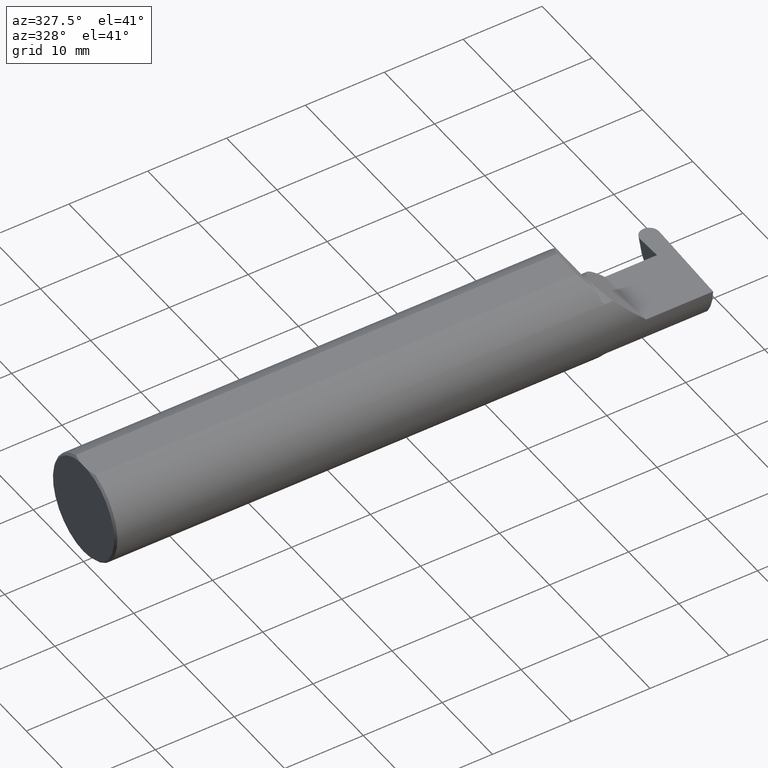
[diagram: clean part render]
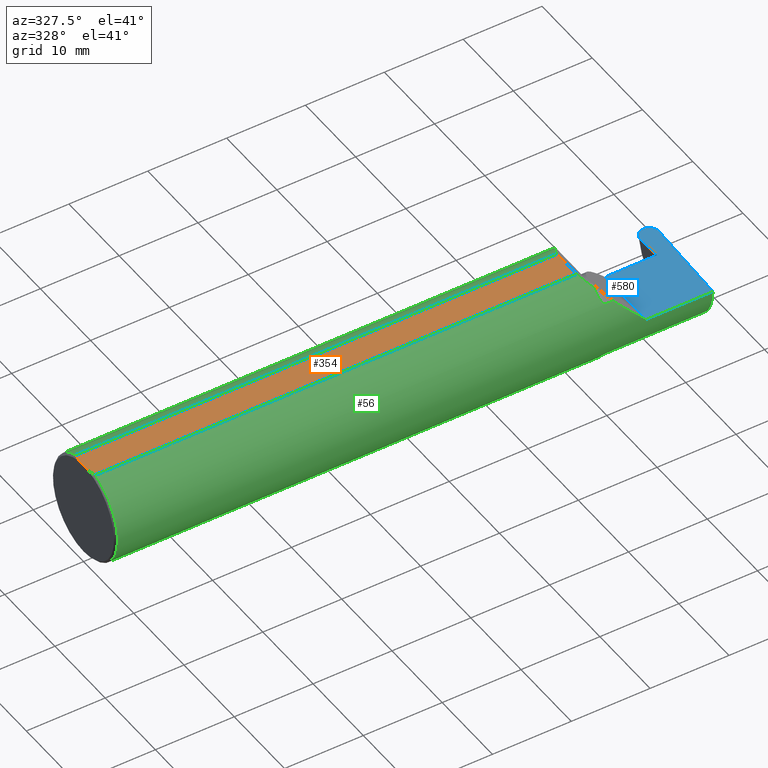
[diagram: same view with three faces highlighted in distinct colors, each labeled with its STEP entity id]
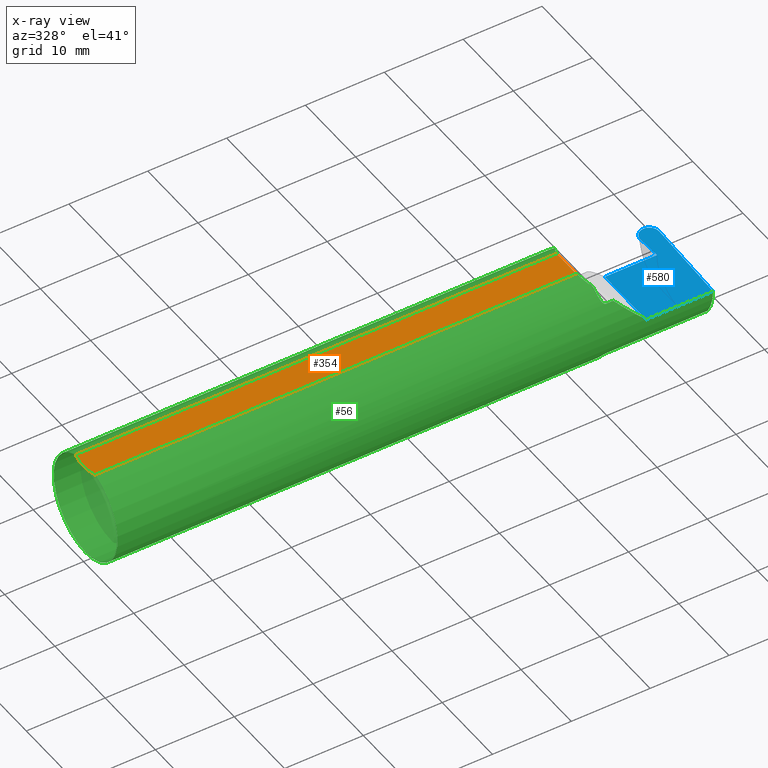
[diagram: x-ray of the same camera — body ghosted, the three highlighted faces saturated]
A machine part, auxiliary view with three faces highlighted in distinct colors.
The next image is the same camera in x-ray (body ghosted, the three faces saturated) — at least one of them is partly hidden behind the body in this view.
Their STEP definitions:

[orange] entity #354 — the highlighted planar face has unit normal (0, 0, 1).
#24 = CARTESIAN_POINT ( 'NONE',  ( 0.009999999999999927350, 0.07650098038587520299, 0.2378499999999998671 ) ) ;
#27 = EDGE_LOOP ( 'NONE', ( #173, #750, #589, #773, #661, #742 ) ) ;
#33 = EDGE_CURVE ( 'NONE', #127, #99, #490, .T. ) ;
#42 = CARTESIAN_POINT ( 'NONE',  ( 0.000000000000000000, -0.03090954545120560767, 0.2378499999999998671 ) ) ;
#57 = CARTESIAN_POINT ( 'NONE',  ( 2.412149999999998240, -0.07650098038587530014, 0.2378499999999998948 ) ) ;
#99 = VERTEX_POINT ( 'NONE', #772 ) ;
#127 = VERTEX_POINT ( 'NONE', #583 ) ;
#135 = VERTEX_POINT ( 'NONE', #57 ) ;
#143 = LINE ( 'NONE', #665, #466 ) ;
#154 = B_SPLINE_CURVE_WITH_KNOTS ( 'NONE', 3,
 ( #807, #605, #158, #24 ),
 .UNSPECIFIED., .F., .F.,
 ( 4, 4 ),
 ( 0.01593449416844765903, 0.01712021724825598876 ),
 .UNSPECIFIED. ) ;
#158 = CARTESIAN_POINT ( 'NONE',  ( 0.005466242398876407227, 0.06169385855649833772, 0.2378499999999998671 ) ) ;
#164 = CARTESIAN_POINT ( 'NONE',  ( 0.005459900170181729989, -0.06167314502012864741, 0.2378499999999998671 ) ) ;
#173 = ORIENTED_EDGE ( 'NONE', *, *, #644, .T. ) ;
#228 = VECTOR ( 'NONE', #581, 39.37007874015748143 ) ;
#288 = FACE_OUTER_BOUND ( 'NONE', #27, .T. ) ;
#294 = VERTEX_POINT ( 'NONE', #353 ) ;
#296 = EDGE_CURVE ( 'NONE', #99, #521, #154, .T. ) ;
#353 = CARTESIAN_POINT ( 'NONE',  ( 0.009999999999999927350, -0.07650098038587520299, 0.2378499999999998671 ) ) ;
#354 = ADVANCED_FACE ( 'NONE', ( #288 ), #492, .T. ) ;
#378 = DIRECTION ( 'NONE',  ( -0.000000000000000000, 1.000000000000000000, -0.000000000000000000 ) ) ;
#379 = EDGE_CURVE ( 'NONE', #533, #521, #489, .T. ) ;
#380 = EDGE_CURVE ( 'NONE', #294, #127, #457, .T. ) ;
#419 = CARTESIAN_POINT ( 'NONE',  ( 3.501298404146671484, 0.2498499999999998500, 0.2378499999999998671 ) ) ;
#427 = VECTOR ( 'NONE', #814, 39.37007874015748143 ) ;
#450 = CARTESIAN_POINT ( 'NONE',  ( 2.412149999999998240, -0.2500000000000000555, 0.2378499999999998948 ) ) ;
#457 = B_SPLINE_CURVE_WITH_KNOTS ( 'NONE', 3,
 ( #753, #164, #666, #42 ),
 .UNSPECIFIED., .F., .F.,
 ( 4, 4 ),
 ( 0.01317593029100226111, 0.01435802289191457325 ),
 .UNSPECIFIED. ) ;
#466 = VECTOR ( 'NONE', #546, 39.37007874015748143 ) ;
#489 = LINE ( 'NONE', #556, #427 ) ;
#490 = LINE ( 'NONE', #701, #506 ) ;
#492 = PLANE ( 'NONE',  #790 ) ;
#506 = VECTOR ( 'NONE', #378, 39.37007874015748143 ) ;
#521 = VERTEX_POINT ( 'NONE', #708 ) ;
#530 = LINE ( 'NONE', #450, #228 ) ;
#533 = VERTEX_POINT ( 'NONE', #841 ) ;
#546 = DIRECTION ( 'NONE',  ( 1.000000000000000000, 0.000000000000000000, 0.000000000000000000 ) ) ;
#550 = DIRECTION ( 'NONE',  ( 1.000000000000000000, 0.000000000000000000, -0.000000000000000000 ) ) ;
#553 = EDGE_CURVE ( 'NONE', #135, #533, #530, .T. ) ;
#556 = CARTESIAN_POINT ( 'NONE',  ( 0.000000000000000000, 0.07650098038587520299, 0.2378499999999998671 ) ) ;
#581 = DIRECTION ( 'NONE',  ( 0.000000000000000000, 1.000000000000000000, 0.000000000000000000 ) ) ;
#583 = CARTESIAN_POINT ( 'NONE',  ( 0.000000000000000000, -0.03090954545120560767, 0.2378499999999998671 ) ) ;
#589 = ORIENTED_EDGE ( 'NONE', *, *, #379, .T. ) ;
#605 = CARTESIAN_POINT ( 'NONE',  ( 0.002005502345409073024, 0.04647171987093980799, 0.2378499999999998671 ) ) ;
#621 = DIRECTION ( 'NONE',  ( 0.000000000000000000, 0.000000000000000000, 1.000000000000000000 ) ) ;
#644 = EDGE_CURVE ( 'NONE', #294, #135, #143, .T. ) ;
#661 = ORIENTED_EDGE ( 'NONE', *, *, #33, .F. ) ;
#665 = CARTESIAN_POINT ( 'NONE',  ( 0.000000000000000000, -0.07650098038587520299, 0.2378499999999998671 ) ) ;
#666 = CARTESIAN_POINT ( 'NONE',  ( 0.001983148254845710189, -0.04629825796642594860, 0.2378499999999998671 ) ) ;
#701 = CARTESIAN_POINT ( 'NONE',  ( 0.000000000000000000, 0.2498499999999998500, 0.2378499999999998671 ) ) ;
#708 = CARTESIAN_POINT ( 'NONE',  ( 0.009999999999999927350, 0.07650098038587520299, 0.2378499999999998671 ) ) ;
#742 = ORIENTED_EDGE ( 'NONE', *, *, #380, .F. ) ;
#750 = ORIENTED_EDGE ( 'NONE', *, *, #553, .T. ) ;
#753 = CARTESIAN_POINT ( 'NONE',  ( 0.009999999999999927350, -0.07650098038587520299, 0.2378499999999998671 ) ) ;
#772 = CARTESIAN_POINT ( 'NONE',  ( 0.000000000000000000, 0.03090954545120574992, 0.2378499999999998671 ) ) ;
#773 = ORIENTED_EDGE ( 'NONE', *, *, #296, .F. ) ;
#790 = AXIS2_PLACEMENT_3D ( 'NONE', #419, #621, #550 ) ;
#807 = CARTESIAN_POINT ( 'NONE',  ( 0.000000000000000000, 0.03090954545120574992, 0.2378499999999998671 ) ) ;
#814 = DIRECTION ( 'NONE',  ( -1.000000000000000000, -0.000000000000000000, -0.000000000000000000 ) ) ;
#841 = CARTESIAN_POINT ( 'NONE',  ( 2.412149999999998240, 0.07650098038587530014, 0.2378499999999998948 ) ) ;

[blue] entity #580 — the highlighted planar face has unit normal (-0, 0, -1).
#11 = LINE ( 'NONE', #18, #816 ) ;
#12 = VERTEX_POINT ( 'NONE', #221 ) ;
#18 = CARTESIAN_POINT ( 'NONE',  ( 2.650000000000000355, -0.2500000000000000555, 4.286263797015729199E-17 ) ) ;
#28 = CARTESIAN_POINT ( 'NONE',  ( 2.924395885334045708, 0.2471499999999999253, 9.093799426912671490E-18 ) ) ;
#40 = CARTESIAN_POINT ( 'NONE',  ( 2.905918923725884451, 0.1970717818336510108, 0.000000000000000000 ) ) ;
#43 = ORIENTED_EDGE ( 'NONE', *, *, #540, .F. ) ;
#70 = DIRECTION ( 'NONE',  ( -1.000000000000000000, -0.000000000000000000, -0.000000000000000000 ) ) ;
#76 = DIRECTION ( 'NONE',  ( 1.000000000000000000, 0.000000000000000000, 0.000000000000000000 ) ) ;
#98 = EDGE_CURVE ( 'NONE', #688, #498, #505, .T. ) ;
#108 = CARTESIAN_POINT ( 'NONE',  ( 3.000942059314616550, 0.2262267247321108621, 2.658190119782672195E-18 ) ) ;
#114 = ORIENTED_EDGE ( 'NONE', *, *, #723, .T. ) ;
#136 = LINE ( 'NONE', #595, #845 ) ;
#140 = DIRECTION ( 'NONE',  ( 1.000000000000000000, -0.000000000000000000, -0.000000000000000000 ) ) ;
#142 = ORIENTED_EDGE ( 'NONE', *, *, #284, .F. ) ;
#144 = AXIS2_PLACEMENT_3D ( 'NONE', #401, #266, #456 ) ;
#153 = CARTESIAN_POINT ( 'NONE',  ( 2.450000000000000178, 0.07414999999999995206, 6.735557395310435121E-17 ) ) ;
#157 = CARTESIAN_POINT ( 'NONE',  ( 2.910211446934811264, 0.07414999999999995206, 0.000000000000000000 ) ) ;
#160 = EDGE_CURVE ( 'NONE', #307, #558, #788, .T. ) ;
#206 = CARTESIAN_POINT ( 'NONE',  ( -0.002039370078740339320, 0.2471499999999999808, 0.000000000000000000 ) ) ;
#207 = VERTEX_POINT ( 'NONE', #651 ) ;
#217 = VECTOR ( 'NONE', #237, 39.37007874015748854 ) ;
#219 = CARTESIAN_POINT ( 'NONE',  ( 2.905918923725884451, 0.1970717818336510108, 0.000000000000000000 ) ) ;
#221 = CARTESIAN_POINT ( 'NONE',  ( 2.899170153812740125, 0.07414999999999995206, 0.000000000000000000 ) ) ;
#225 = DIRECTION ( 'NONE',  ( -0.000000000000000000, 1.000000000000000000, -0.000000000000000000 ) ) ;
#237 = DIRECTION ( 'NONE',  ( -0.03489949670249305885, 0.9993908270190959842, -0.000000000000000000 ) ) ;
#238 = VECTOR ( 'NONE', #662, 39.37007874015748143 ) ;
#256 = LINE ( 'NONE', #836, #238 ) ;
#266 = DIRECTION ( 'NONE',  ( -1.224646799147351975E-16, 0.000000000000000000, -1.000000000000000000 ) ) ;
#278 = CARTESIAN_POINT ( 'NONE',  ( 2.910211446934811264, 0.07414999999999995206, 0.000000000000000000 ) ) ;
#282 = LINE ( 'NONE', #153, #697 ) ;
#283 = VECTOR ( 'NONE', #140, 39.37007874015748143 ) ;
#284 = EDGE_CURVE ( 'NONE', #207, #472, #11, .T. ) ;
#287 = CARTESIAN_POINT ( 'NONE',  ( 2.904900810685382861, 0.2262267247321106678, 1.148125750367493843E-17 ) ) ;
#289 = CARTESIAN_POINT ( 'NONE',  ( 2.905871548989777509, 0.1984284167760241857, 0.000000000000000000 ) ) ;
#297 = CARTESIAN_POINT ( 'NONE',  ( 2.650000000000000355, 0.07414999999999984104, 4.286263797015729199E-17 ) ) ;
#307 = VERTEX_POINT ( 'NONE', #426 ) ;
#337 = FACE_OUTER_BOUND ( 'NONE', #434, .T. ) ;
#343 = EDGE_CURVE ( 'NONE', #472, #12, #282, .T. ) ;
#349 = CARTESIAN_POINT ( 'NONE',  ( 2.984317093749864647, -0.2498499999999999888, 0.000000000000000000 ) ) ;
#365 = ORIENTED_EDGE ( 'NONE', *, *, #98, .F. ) ;
#387 = PLANE ( 'NONE',  #144 ) ;
#401 = CARTESIAN_POINT ( 'NONE',  ( 3.000000000000000444, -0.2500000000000000555, 0.000000000000000000 ) ) ;
#417 = ORIENTED_EDGE ( 'NONE', *, *, #160, .F. ) ;
#424 = CARTESIAN_POINT ( 'NONE',  ( 2.952578855735824348, 0.2471499999999999808, 0.000000000000000000 ) ) ;
#426 = CARTESIAN_POINT ( 'NONE',  ( 2.952578855735824348, 0.2471499999999999808, 0.000000000000000000 ) ) ;
#434 = EDGE_LOOP ( 'NONE', ( #417, #114, #365, #645, #819, #142, #796, #43, #720 ) ) ;
#456 = DIRECTION ( 'NONE',  ( -1.000000000000000000, 0.000000000000000000, 1.224646799147351975E-16 ) ) ;
#467 = VERTEX_POINT ( 'NONE', #703 ) ;
#470 = EDGE_CURVE ( 'NONE', #467, #558, #637, .T. ) ;
#472 = VERTEX_POINT ( 'NONE', #297 ) ;
#485 = LINE ( 'NONE', #157, #519 ) ;
#498 = VERTEX_POINT ( 'NONE', #40 ) ;
#505 = LINE ( 'NONE', #289, #217 ) ;
#519 = VECTOR ( 'NONE', #607, 39.37007874015748143 ) ;
#523 = CARTESIAN_POINT ( 'NONE',  ( 2.953264014264175064, 0.2471499999999999808, 0.000000000000000000 ) ) ;
#529 = EDGE_CURVE ( 'NONE', #734, #207, #136, .T. ) ;
#540 = EDGE_CURVE ( 'NONE', #467, #734, #256, .T. ) ;
#558 = VERTEX_POINT ( 'NONE', #523 ) ;
#561 = CARTESIAN_POINT ( 'NONE',  ( 2.953264014264175064, 0.2471499999999999808, 0.000000000000000000 ) ) ;
#567 = CARTESIAN_POINT ( 'NONE',  ( 2.999923946274115405, 0.1970717818336509553, 0.000000000000000000 ) ) ;
#580 = ADVANCED_FACE ( 'NONE', ( #337 ), #387, .F. ) ;
#595 = CARTESIAN_POINT ( 'NONE',  ( 4.499279347985562423E-32, -0.2498499999999999610, 3.673940397442054938E-16 ) ) ;
#607 = DIRECTION ( 'NONE',  ( 1.000000000000000000, -0.000000000000000000, -0.000000000000000000 ) ) ;
#637 =( BOUNDED_CURVE ( )  B_SPLINE_CURVE ( 3, ( #567, #108, #771, #561 ),
 .UNSPECIFIED., .F., .F. ) 
 B_SPLINE_CURVE_WITH_KNOTS ( ( 4, 4 ),
 ( 1.637964922114648392, 3.237953570749846577 ),
 .UNSPECIFIED. ) 
 CURVE ( )  GEOMETRIC_REPRESENTATION_ITEM ( )  RATIONAL_B_SPLINE_CURVE ( ( 1.000000000000000000, 0.7978071872141893062, 0.7978071872141893062, 1.000000000000000000 ) ) 
 REPRESENTATION_ITEM ( '' )  );
#645 = ORIENTED_EDGE ( 'NONE', *, *, #743, .F. ) ;
#651 = CARTESIAN_POINT ( 'NONE',  ( 2.650000000000000355, -0.2498499999999999610, 4.286263797015729199E-17 ) ) ;
#662 = DIRECTION ( 'NONE',  ( -0.03489949670249360703, -0.9993908270190959842, 0.000000000000000000 ) ) ;
#688 = VERTEX_POINT ( 'NONE', #278 ) ;
#697 = VECTOR ( 'NONE', #76, 39.37007874015748143 ) ;
#703 = CARTESIAN_POINT ( 'NONE',  ( 2.999923946274115405, 0.1970717818336509553, 0.000000000000000000 ) ) ;
#720 = ORIENTED_EDGE ( 'NONE', *, *, #470, .T. ) ;
#723 = EDGE_CURVE ( 'NONE', #307, #498, #729, .T. ) ;
#729 =( BOUNDED_CURVE ( )  B_SPLINE_CURVE ( 3, ( #424, #28, #287, #219 ),
 .UNSPECIFIED., .F., .F. ) 
 B_SPLINE_CURVE_WITH_KNOTS ( ( 4, 4 ),
 ( 3.045231736429750757, 4.645220385064936508 ),
 .UNSPECIFIED. ) 
 CURVE ( )  GEOMETRIC_REPRESENTATION_ITEM ( )  RATIONAL_B_SPLINE_CURVE ( ( 1.000000000000000000, 0.7978071872141923038, 0.7978071872141923038, 1.000000000000000000 ) ) 
 REPRESENTATION_ITEM ( '' )  );
#734 = VERTEX_POINT ( 'NONE', #349 ) ;
#743 = EDGE_CURVE ( 'NONE', #12, #688, #485, .T. ) ;
#771 = CARTESIAN_POINT ( 'NONE',  ( 2.981446984665954592, 0.2471500000000002306, 5.045648196544972649E-18 ) ) ;
#788 = LINE ( 'NONE', #206, #283 ) ;
#796 = ORIENTED_EDGE ( 'NONE', *, *, #529, .F. ) ;
#816 = VECTOR ( 'NONE', #225, 39.37007874015748143 ) ;
#819 = ORIENTED_EDGE ( 'NONE', *, *, #343, .F. ) ;
#836 = CARTESIAN_POINT ( 'NONE',  ( 2.999971321010222347, 0.1984284167760241857, 0.000000000000000000 ) ) ;
#845 = VECTOR ( 'NONE', #70, 39.37007874015748143 ) ;

[green] entity #56 — the highlighted cylindrical surface (partial cylindrical patch) has radius 6.3462 mm, axis along (-1, -0, -0).
#3 = CARTESIAN_POINT ( 'NONE',  ( 2.983360130692194634, -0.2080850024789288044, -0.1382955322609671633 ) ) ;
#20 =( BOUNDED_CURVE ( )  B_SPLINE_CURVE ( 3, ( #736, #798, #478, #672 ),
 .UNSPECIFIED., .F., .F. ) 
 B_SPLINE_CURVE_WITH_KNOTS ( ( 4, 4 ),
 ( 6.160376845738969820, 6.746954780470629132 ),
 .UNSPECIFIED. ) 
 CURVE ( )  GEOMETRIC_REPRESENTATION_ITEM ( )  RATIONAL_B_SPLINE_CURVE ( ( 1.000000000000000000, 0.9715321379117536349, 0.9715321379117536349, 1.000000000000000000 ) ) 
 REPRESENTATION_ITEM ( '' )  );
#30 = FACE_OUTER_BOUND ( 'NONE', #541, .T. ) ;
#32 = CARTESIAN_POINT ( 'NONE',  ( 2.450000000000000622, -0.1716188362992551730, -0.1820560320165483525 ) ) ;
#38 = ORIENTED_EDGE ( 'NONE', *, *, #767, .F. ) ;
#46 = ORIENTED_EDGE ( 'NONE', *, *, #644, .F. ) ;
#48 = CARTESIAN_POINT ( 'NONE',  ( 2.420642670853159650, -0.1029056323555044700, 0.2293573291468382624 ) ) ;
#49 =( BOUNDED_CURVE ( )  B_SPLINE_CURVE ( 3, ( #488, #345, #797, #223 ),
 .UNSPECIFIED., .F., .T. ) 
 B_SPLINE_CURVE_WITH_KNOTS ( ( 4, 4 ),
 ( 4.712388980384689674, 5.298966915116348986 ),
 .UNSPECIFIED. ) 
 CURVE ( )  GEOMETRIC_REPRESENTATION_ITEM ( )  RATIONAL_B_SPLINE_CURVE ( ( 1.000000000000000000, 0.9715321379117536349, 0.9715321379117536349, 1.000000000000000000 ) ) 
 REPRESENTATION_ITEM ( '' )  );
#56 = ADVANCED_FACE ( 'NONE', ( #30 ), #242, .T. ) ;
#57 = CARTESIAN_POINT ( 'NONE',  ( 2.412149999999998240, -0.07650098038587530014, 0.2378499999999998948 ) ) ;
#58 = VERTEX_POINT ( 'NONE', #360 ) ;
#70 = DIRECTION ( 'NONE',  ( -1.000000000000000000, -0.000000000000000000, -0.000000000000000000 ) ) ;
#81 = CARTESIAN_POINT ( 'NONE',  ( 2.475000000000000089, -0.2080850024789288599, 0.1382955322609669968 ) ) ;
#87 = CARTESIAN_POINT ( 'NONE',  ( 2.690421435000000194, -0.2080850024789288044, -0.1382955322609671633 ) ) ;
#103 = CARTESIAN_POINT ( 'NONE',  ( 2.450000000000000178, -0.1616050818046600723, 0.1905487340154983222 ) ) ;
#105 = DIRECTION ( 'NONE',  ( 0.000000000000000000, 0.000000000000000000, -1.000000000000000000 ) ) ;
#125 = CARTESIAN_POINT ( 'NONE',  ( 2.464343523383979218, -0.2041337200786082218, 0.1440846171672514053 ) ) ;
#126 = CARTESIAN_POINT ( 'NONE',  ( 2.450000000000000178, -0.1616050818046600723, -0.1905487340154983222 ) ) ;
#129 = CARTESIAN_POINT ( 'NONE',  ( 2.475000000000000089, -0.2080850024789288599, 0.1382955322609669968 ) ) ;
#135 = VERTEX_POINT ( 'NONE', #57 ) ;
#136 = LINE ( 'NONE', #595, #845 ) ;
#139 = CARTESIAN_POINT ( 'NONE',  ( 2.468863362722769406, -0.2068301641248767586, -0.1401678546132363867 ) ) ;
#143 = LINE ( 'NONE', #665, #466 ) ;
#156 = VERTEX_POINT ( 'NONE', #126 ) ;
#159 = EDGE_CURVE ( 'NONE', #594, #521, #239, .T. ) ;
#176 = CARTESIAN_POINT ( 'NONE',  ( 2.420642670853159650, 0.1029056323555044006, 0.2293573291468383180 ) ) ;
#185 = CARTESIAN_POINT ( 'NONE',  ( 2.452968662030529323, -0.1849684355203375929, 0.1680843977756270868 ) ) ;
#193 = CARTESIAN_POINT ( 'NONE',  ( 2.450367168219774516, -0.1713400252854600514, 0.1819601557798508629 ) ) ;
#200 =( BOUNDED_CURVE ( )  B_SPLINE_CURVE ( 3, ( #236, #176, #640, #234 ),
 .UNSPECIFIED., .F., .F. ) 
 B_SPLINE_CURVE_WITH_KNOTS ( ( 4, 4 ),
 ( 0.3111857320071445554, 0.6427002007837618880 ),
 .UNSPECIFIED. ) 
 CURVE ( )  GEOMETRIC_REPRESENTATION_ITEM ( )  RATIONAL_B_SPLINE_CURVE ( ( 1.000000000000000000, 0.9908624633578577701, 0.9908624633578577701, 1.000000000000000000 ) ) 
 REPRESENTATION_ITEM ( '' )  );
#201 = ORIENTED_EDGE ( 'NONE', *, *, #433, .T. ) ;
#203 = CARTESIAN_POINT ( 'NONE',  ( 2.450000000000000178, -0.1616050818046600723, 0.1905487340154983222 ) ) ;
#207 = VERTEX_POINT ( 'NONE', #651 ) ;
#218 = ORIENTED_EDGE ( 'NONE', *, *, #379, .F. ) ;
#222 = EDGE_CURVE ( 'NONE', #294, #594, #805, .T. ) ;
#223 = CARTESIAN_POINT ( 'NONE',  ( 2.511704467739031887, -0.2080850024789287211, 0.1382955322609671911 ) ) ;
#227 = CARTESIAN_POINT ( 'NONE',  ( 2.511704467739031887, -0.2080850024789287211, 0.1382955322609671911 ) ) ;
#229 = AXIS2_PLACEMENT_3D ( 'NONE', #487, #812, #746 ) ;
#234 = CARTESIAN_POINT ( 'NONE',  ( 2.450000000000000178, 0.1497498664440162219, 0.1999999999999983180 ) ) ;
#236 = CARTESIAN_POINT ( 'NONE',  ( 2.412149999999998240, 0.07650098038587530014, 0.2378499999999998948 ) ) ;
#239 = CIRCLE ( 'NONE', #372, 0.2498499999999999888 ) ;
#241 = CARTESIAN_POINT ( 'NONE',  ( 2.450000000000000178, -0.1497498664440161942, 0.1999999999999983180 ) ) ;
#242 = CYLINDRICAL_SURFACE ( 'NONE', #229, 0.2498499999999999888 ) ;
#259 = EDGE_CURVE ( 'NONE', #525, #734, #20, .T. ) ;
#267 = CARTESIAN_POINT ( 'NONE',  ( 0.009999999999999927350, 0.000000000000000000, 0.000000000000000000 ) ) ;
#277 = ORIENTED_EDGE ( 'NONE', *, *, #803, .F. ) ;
#286 = B_SPLINE_CURVE_WITH_KNOTS ( 'NONE', 3,
 ( #203, #535, #193, #848, #185, #322, #460, #517, #125, #390, #394, #654, #326, #129 ),
 .UNSPECIFIED., .F., .F.,
 ( 4, 2, 2, 2, 2, 2, 4 ),
 ( 0.0003834465838148112338, 0.0008781406165086604390, 0.001372834649202509753, 0.001867528681896358633, 0.002114875698243288710, 0.002238549206416754183, 0.002362222714590220089 ),
 .UNSPECIFIED. ) ;
#294 = VERTEX_POINT ( 'NONE', #353 ) ;
#295 = DIRECTION ( 'NONE',  ( 1.000000000000000000, 0.000000000000000000, 0.000000000000000000 ) ) ;
#304 = CARTESIAN_POINT ( 'NONE',  ( 2.450000000000000178, -0.1616050818046600723, -0.1905487340154983222 ) ) ;
#308 = CARTESIAN_POINT ( 'NONE',  ( 2.458176740666624838, -0.1972027065478071106, -0.1535263573771916135 ) ) ;
#309 = LINE ( 'NONE', #510, #483 ) ;
#317 = DIRECTION ( 'NONE',  ( 0.000000000000000000, 0.000000000000000000, -1.000000000000000000 ) ) ;
#322 = CARTESIAN_POINT ( 'NONE',  ( 2.456159563508734323, -0.1933019864360847051, 0.1584298865564834624 ) ) ;
#326 = CARTESIAN_POINT ( 'NONE',  ( 2.473329956043142985, -0.2080850024798588660, 0.1382955322595678660 ) ) ;
#329 = AXIS2_PLACEMENT_3D ( 'NONE', #761, #295, #105 ) ;
#345 = CARTESIAN_POINT ( 'NONE',  ( 2.600434159100402987, -0.2498499999999999610, 0.04956584089959713973 ) ) ;
#349 = CARTESIAN_POINT ( 'NONE',  ( 2.984317093749864647, -0.2498499999999999888, 0.000000000000000000 ) ) ;
#353 = CARTESIAN_POINT ( 'NONE',  ( 0.009999999999999927350, -0.07650098038587520299, 0.2378499999999998671 ) ) ;
#360 = CARTESIAN_POINT ( 'NONE',  ( 2.475000000000000089, -0.2080850024789288599, -0.1382955322609670246 ) ) ;
#372 = AXIS2_PLACEMENT_3D ( 'NONE', #267, #531, #407 ) ;
#379 = EDGE_CURVE ( 'NONE', #533, #521, #489, .T. ) ;
#383 = CARTESIAN_POINT ( 'NONE',  ( 2.450000000000000178, 0.000000000000000000, 0.000000000000000000 ) ) ;
#388 = VERTEX_POINT ( 'NONE', #227 ) ;
#390 = CARTESIAN_POINT ( 'NONE',  ( 2.467647060162629025, -0.2062109266231180460, 0.1410799729252292245 ) ) ;
#391 = DIRECTION ( 'NONE',  ( 1.000000000000000000, 0.000000000000000000, 0.000000000000000000 ) ) ;
#394 = CARTESIAN_POINT ( 'NONE',  ( 2.468876997637615478, -0.2068363917296598131, 0.1401586554522232519 ) ) ;
#403 = EDGE_CURVE ( 'NONE', #449, #444, #630, .T. ) ;
#406 = CARTESIAN_POINT ( 'NONE',  ( 2.467611663768900954, -0.2061921161193830399, -0.1411075319999378908 ) ) ;
#407 = DIRECTION ( 'NONE',  ( 0.000000000000000000, 0.000000000000000000, -1.000000000000000000 ) ) ;
#420 = EDGE_CURVE ( 'NONE', #727, #388, #309, .T. ) ;
#422 = B_SPLINE_CURVE_WITH_KNOTS ( 'NONE', 3,
 ( #792, #473, #732, #139, #406, #757, #692, #308, #822, #623, #32, #304 ),
 .UNSPECIFIED., .F., .F.,
 ( 4, 2, 2, 2, 2, 4 ),
 ( 1.964491429112497443E-07, 0.0001260981470478312390, 0.0002519998449527511967, 0.0005038032407626182171, 0.001007410032382352475, 0.002014623615621818822 ),
 .UNSPECIFIED. ) ;
#423 = VERTEX_POINT ( 'NONE', #768 ) ;
#427 = VECTOR ( 'NONE', #814, 39.37007874015748143 ) ;
#429 = ORIENTED_EDGE ( 'NONE', *, *, #420, .F. ) ;
#433 = EDGE_CURVE ( 'NONE', #533, #423, #200, .T. ) ;
#441 = EDGE_CURVE ( 'NONE', #449, #135, #842, .T. ) ;
#444 = VERTEX_POINT ( 'NONE', #103 ) ;
#449 = VERTEX_POINT ( 'NONE', #241 ) ;
#460 = CARTESIAN_POINT ( 'NONE',  ( 2.458182335268384477, -0.1972192205116129748, 0.1535061413537211761 ) ) ;
#466 = VECTOR ( 'NONE', #546, 39.37007874015748143 ) ;
#473 = CARTESIAN_POINT ( 'NONE',  ( 2.473318040126429640, -0.2080850024789288322, -0.1382955322609669691 ) ) ;
#478 = CARTESIAN_POINT ( 'NONE',  ( 2.983451391416268805, -0.2498499999999999610, -0.04956584089959722994 ) ) ;
#483 = VECTOR ( 'NONE', #763, 39.37007874015748143 ) ;
#487 = CARTESIAN_POINT ( 'NONE',  ( 0.000000000000000000, 0.000000000000000000, 0.000000000000000000 ) ) ;
#488 = CARTESIAN_POINT ( 'NONE',  ( 2.650000000000000355, -0.2498499999999999610, 4.286263797015729199E-17 ) ) ;
#489 = LINE ( 'NONE', #556, #427 ) ;
#510 = CARTESIAN_POINT ( 'NONE',  ( 2.690421435000000194, -0.2080850024789288044, 0.1382955322609671633 ) ) ;
#514 = CARTESIAN_POINT ( 'NONE',  ( 2.412149999999998240, -0.07650098038587530014, 0.2378499999999998948 ) ) ;
#517 = CARTESIAN_POINT ( 'NONE',  ( 2.462616400345756684, -0.2024684335577101590, 0.1464246884265640036 ) ) ;
#520 = AXIS2_PLACEMENT_3D ( 'NONE', #383, #829, #317 ) ;
#521 = VERTEX_POINT ( 'NONE', #708 ) ;
#525 = VERTEX_POINT ( 'NONE', #3 ) ;
#529 = EDGE_CURVE ( 'NONE', #734, #207, #136, .T. ) ;
#531 = DIRECTION ( 'NONE',  ( 1.000000000000000000, 0.000000000000000000, 0.000000000000000000 ) ) ;
#533 = VERTEX_POINT ( 'NONE', #841 ) ;
#535 = CARTESIAN_POINT ( 'NONE',  ( 2.450000000000000178, -0.1665641037263006496, 0.1863429692936364734 ) ) ;
#541 = EDGE_LOOP ( 'NONE', ( #38, #552, #664, #770, #429, #584, #834, #597, #46, #804, #815, #218, #201, #277, #652 ) ) ;
#546 = DIRECTION ( 'NONE',  ( 1.000000000000000000, 0.000000000000000000, 0.000000000000000000 ) ) ;
#549 = DIRECTION ( 'NONE',  ( -1.000000000000000000, -0.000000000000000000, -0.000000000000000000 ) ) ;
#552 = ORIENTED_EDGE ( 'NONE', *, *, #259, .T. ) ;
#556 = CARTESIAN_POINT ( 'NONE',  ( 0.000000000000000000, 0.07650098038587520299, 0.2378499999999998671 ) ) ;
#573 = AXIS2_PLACEMENT_3D ( 'NONE', #733, #391, #785 ) ;
#584 = ORIENTED_EDGE ( 'NONE', *, *, #617, .F. ) ;
#594 = VERTEX_POINT ( 'NONE', #728 ) ;
#595 = CARTESIAN_POINT ( 'NONE',  ( 4.499279347985562423E-32, -0.2498499999999999610, 3.673940397442054938E-16 ) ) ;
#597 = ORIENTED_EDGE ( 'NONE', *, *, #441, .T. ) ;
#601 = CIRCLE ( 'NONE', #329, 0.2498499999999999888 ) ;
#617 = EDGE_CURVE ( 'NONE', #444, #727, #286, .T. ) ;
#623 = CARTESIAN_POINT ( 'NONE',  ( 2.451385488563270432, -0.1808287530430324475, -0.1728790649396288182 ) ) ;
#630 = CIRCLE ( 'NONE', #520, 0.2498499999999999888 ) ;
#635 = CARTESIAN_POINT ( 'NONE',  ( 2.433375685911487007, -0.1275470899297182492, 0.2166243140885107110 ) ) ;
#640 = CARTESIAN_POINT ( 'NONE',  ( 2.433375685911487007, 0.1275470899297182215, 0.2166243140885107388 ) ) ;
#641 = VECTOR ( 'NONE', #549, 39.37007874015748143 ) ;
#644 = EDGE_CURVE ( 'NONE', #294, #135, #143, .T. ) ;
#651 = CARTESIAN_POINT ( 'NONE',  ( 2.650000000000000355, -0.2498499999999999610, 4.286263797015729199E-17 ) ) ;
#652 = ORIENTED_EDGE ( 'NONE', *, *, #795, .F. ) ;
#654 = CARTESIAN_POINT ( 'NONE',  ( 2.471718393013770054, -0.2077830475237239238, 0.1387513848711940667 ) ) ;
#655 = EDGE_CURVE ( 'NONE', #207, #388, #49, .T. ) ;
#664 = ORIENTED_EDGE ( 'NONE', *, *, #529, .T. ) ;
#665 = CARTESIAN_POINT ( 'NONE',  ( 0.000000000000000000, -0.07650098038587520299, 0.2378499999999998671 ) ) ;
#672 = CARTESIAN_POINT ( 'NONE',  ( 2.984317093749864647, -0.2498499999999999888, 0.000000000000000000 ) ) ;
#674 = LINE ( 'NONE', #87, #641 ) ;
#692 = CARTESIAN_POINT ( 'NONE',  ( 2.462579853086618975, -0.2024300470081732695, -0.1464774911482686903 ) ) ;
#693 = CARTESIAN_POINT ( 'NONE',  ( 2.450000000000000178, -0.1497498664440161942, 0.1999999999999983180 ) ) ;
#708 = CARTESIAN_POINT ( 'NONE',  ( 0.009999999999999927350, 0.07650098038587520299, 0.2378499999999998671 ) ) ;
#727 = VERTEX_POINT ( 'NONE', #81 ) ;
#728 = CARTESIAN_POINT ( 'NONE',  ( 0.009999999999999927350, 0.000000000000000000, -0.2498499999999999888 ) ) ;
#732 = CARTESIAN_POINT ( 'NONE',  ( 2.471700027347578654, -0.2077785947292765667, -0.1387580622202828351 ) ) ;
#733 = CARTESIAN_POINT ( 'NONE',  ( 0.009999999999999927350, 0.000000000000000000, 0.000000000000000000 ) ) ;
#734 = VERTEX_POINT ( 'NONE', #349 ) ;
#736 = CARTESIAN_POINT ( 'NONE',  ( 2.983360130692194634, -0.2080850024789288044, -0.1382955322609671633 ) ) ;
#746 = DIRECTION ( 'NONE',  ( 0.000000000000000000, 0.000000000000000000, 1.000000000000000000 ) ) ;
#757 = CARTESIAN_POINT ( 'NONE',  ( 2.464302603425053029, -0.2041009206016212441, -0.1441313430770040926 ) ) ;
#761 = CARTESIAN_POINT ( 'NONE',  ( 2.450000000000000178, 0.000000000000000000, 0.000000000000000000 ) ) ;
#763 = DIRECTION ( 'NONE',  ( 1.000000000000000000, 0.000000000000000000, 0.000000000000000000 ) ) ;
#767 = EDGE_CURVE ( 'NONE', #525, #58, #674, .T. ) ;
#768 = CARTESIAN_POINT ( 'NONE',  ( 2.450000000000000178, 0.1497498664440162219, 0.1999999999999983180 ) ) ;
#770 = ORIENTED_EDGE ( 'NONE', *, *, #655, .T. ) ;
#785 = DIRECTION ( 'NONE',  ( 0.000000000000000000, 0.000000000000000000, -1.000000000000000000 ) ) ;
#792 = CARTESIAN_POINT ( 'NONE',  ( 2.475000000000000089, -0.2080850024789288599, -0.1382955322609670246 ) ) ;
#795 = EDGE_CURVE ( 'NONE', #58, #156, #422, .T. ) ;
#797 = CARTESIAN_POINT ( 'NONE',  ( 2.552984868485331571, -0.2355204011147991605, 0.09701513151466779894 ) ) ;
#798 = CARTESIAN_POINT ( 'NONE',  ( 2.983123056744215962, -0.2355204011147991328, -0.09701513151466793772 ) ) ;
#803 = EDGE_CURVE ( 'NONE', #156, #423, #601, .T. ) ;
#804 = ORIENTED_EDGE ( 'NONE', *, *, #222, .T. ) ;
#805 = CIRCLE ( 'NONE', #573, 0.2498499999999999888 ) ;
#812 = DIRECTION ( 'NONE',  ( -1.000000000000000000, -0.000000000000000000, -0.000000000000000000 ) ) ;
#814 = DIRECTION ( 'NONE',  ( -1.000000000000000000, -0.000000000000000000, -0.000000000000000000 ) ) ;
#815 = ORIENTED_EDGE ( 'NONE', *, *, #159, .T. ) ;
#822 = CARTESIAN_POINT ( 'NONE',  ( 2.456147634408387681, -0.1932733126899458531, -0.1584637047788199915 ) ) ;
#829 = DIRECTION ( 'NONE',  ( 1.000000000000000000, 0.000000000000000000, 0.000000000000000000 ) ) ;
#834 = ORIENTED_EDGE ( 'NONE', *, *, #403, .F. ) ;
#841 = CARTESIAN_POINT ( 'NONE',  ( 2.412149999999998240, 0.07650098038587530014, 0.2378499999999998948 ) ) ;
#842 =( BOUNDED_CURVE ( )  B_SPLINE_CURVE ( 3, ( #693, #635, #48, #514 ),
 .UNSPECIFIED., .F., .F. ) 
 B_SPLINE_CURVE_WITH_KNOTS ( ( 4, 4 ),
 ( 5.640485106395824566, 5.971999575172441510 ),
 .UNSPECIFIED. ) 
 CURVE ( )  GEOMETRIC_REPRESENTATION_ITEM ( )  RATIONAL_B_SPLINE_CURVE ( ( 1.000000000000000000, 0.9908624633578577701, 0.9908624633578577701, 1.000000000000000000 ) ) 
 REPRESENTATION_ITEM ( '' )  );
#845 = VECTOR ( 'NONE', #70, 39.37007874015748143 ) ;
#848 = CARTESIAN_POINT ( 'NONE',  ( 2.451849548162864600, -0.1805300287242671275, 0.1728462070311783116 ) ) ;